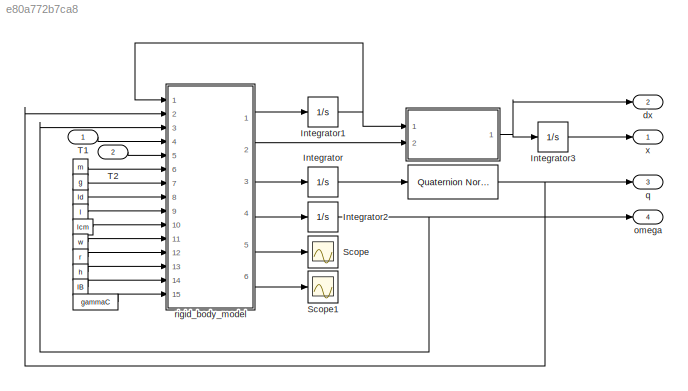
MODEL slx_e80a772b7ca8
KIND model
CONFIG AbsTol = auto
CONFIG FixedStep = auto
CONFIG MaxStep = auto
CONFIG MinStep = auto
CONFIG RelTol = 1e-3
CONFIG SampleTimeConstraint = Unconstrained
CONFIG Solver = VariableStepAuto
CONFIG SolverMode = Auto
CONFIG SolverName = VariableStepAuto
CONFIG StartTime = 0.0
CONFIG StopTime = 20
BLOCK [Constant]  
  Value = ld
BLOCK [Constant]   
  Value = m
BLOCK [Constant]    
  Value = g
BLOCK [Constant]     
  Value = l
BLOCK [Constant]      
  Value = lcm
BLOCK [Constant]       
  Value = w
BLOCK [Constant]        
  Value = r
BLOCK [Constant]         
  Value = h
BLOCK [Constant]          
  Value = IB
BLOCK [Constant]            
  Value = gammaC
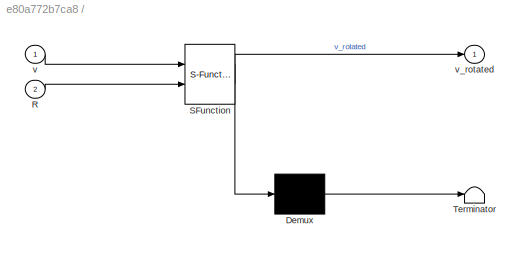
BLOCK [SubSystem]              
  ErrorFcn = Stateflow.Translate.translate
  PermitHierarchicalResolution = ExplicitOnly
  Ports = [2, 1]
  RequestExecContextInheritance = off
  SFBlockType = MATLAB Function
  TreatAsAtomicUnit = on
  Variant = off
BLOCK [Reference]                       REF=aerolibutil/Quaternion
Normalize
  Ports = [1, 1]
  SourceBlock = aerolibutil/Quaternion\nNormalize
  SourceType = Quaternion Normalize
BLOCK [Demux]              / Demux 
  Outputs = 1
  Ports = [1, 1]
BLOCK [S-Function]              / SFunction 
  EnableBusSupport = on
  FunctionName = sf_sfun
  PortCounts = [2 2]
  Ports = [2, 2]
  SFunctionDeploymentMode = off
  Tag = Stateflow S-Function rigid_body_model 1
BLOCK [Terminator]              / Terminator 
BLOCK [Inport]              /R
  IconDisplay = Port number
  Port = 2
BLOCK [Inport]              /v
  IconDisplay = Port number
BLOCK [Outport]              /v_rotated
  IconDisplay = Port number
BLOCK [Integrator] Integrator
  InitialCondition = q0
  Ports = [1, 1]
BLOCK [Integrator] Integrator1
  InitialCondition = v0
  Ports = [1, 1]
BLOCK [Integrator] Integrator2
  InitialCondition = omega0
  Ports = [1, 1]
BLOCK [Integrator] Integrator3
  InitialCondition = p0
  Ports = [1, 1]
BLOCK [Scope] Scope
  Ports = [1]
  ScopeSpecificationString = Simulink.scopes.TimeScopeBlockCfg('CurrentConfiguration', extmgr.ConfigurationSet(extmgr.Configuration('Core','General UI',true),extmgr.Configuration('Core','Source UI',true),extmgr.Configuration('Sources','WiredSimulink',true),extmgr.Configuration('Visuals','Time Domain',true,'SerializedDisplays',{struct('MinYLimReal','-0.04058','MaxYLimReal','0.33234','YLabelReal','','MinYLimMag','0.00000','MaxY...<+1401ch>
BLOCK [Scope] Scope1
  Ports = [1]
  ScopeSpecificationString = Simulink.scopes.TimeScopeBlockCfg('CurrentConfiguration', extmgr.ConfigurationSet(extmgr.Configuration('Core','General UI',true),extmgr.Configuration('Core','Source UI',true),extmgr.Configuration('Sources','WiredSimulink',true,'DataLoggingVariableName','ScopeData1'),extmgr.Configuration('Visuals','Time Domain',true,'SerializedDisplays',{struct('MinYLimReal','-1.25','MaxYLimReal','1.25','YLabelReal...<+1450ch>
BLOCK [Inport] T1
  IconDisplay = Port number
  PortDimensions = 3
BLOCK [Inport] T2
  IconDisplay = Port number
  Port = 2
  PortDimensions = 3
BLOCK [Outport] dx
  IconDisplay = Port number
  Port = 2
  PortDimensions = 3
BLOCK [Outport] omega
  IconDisplay = Port number
  Port = 4
  PortDimensions = 3
BLOCK [Outport] q
  IconDisplay = Port number
  Port = 3
  PortDimensions = 4
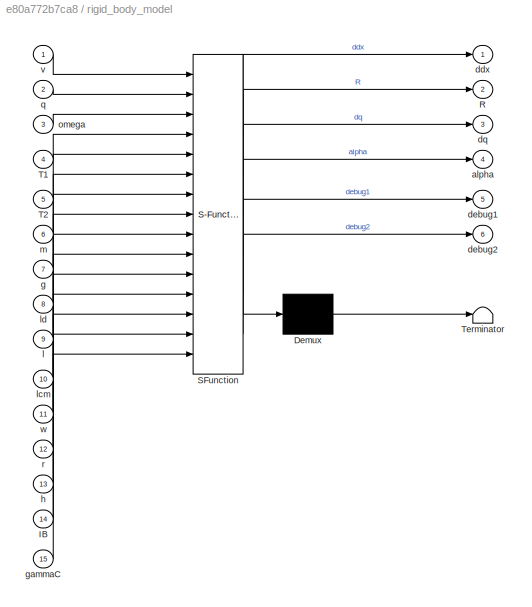
BLOCK [SubSystem] rigid_body_model
  ErrorFcn = Stateflow.Translate.translate
  PermitHierarchicalResolution = ExplicitOnly
  Ports = [15, 6]
  RequestExecContextInheritance = off
  SFBlockType = MATLAB Function
  TreatAsAtomicUnit = on
  Variant = off
BLOCK [Demux] rigid_body_model/ Demux 
  Outputs = 1
  Ports = [1, 1]
BLOCK [S-Function] rigid_body_model/ SFunction 
  EnableBusSupport = on
  FunctionName = sf_sfun
  PortCounts = [15 7]
  Ports = [15, 7]
  SFunctionDeploymentMode = off
  Tag = Stateflow S-Function rigid_body_model 2
BLOCK [Terminator] rigid_body_model/ Terminator 
BLOCK [Inport] rigid_body_model/IB
  IconDisplay = Port number
  Port = 14
BLOCK [Outport] rigid_body_model/R
  IconDisplay = Port number
  Port = 2
BLOCK [Inport] rigid_body_model/T1
  IconDisplay = Port number
  Port = 4
BLOCK [Inport] rigid_body_model/T2
  IconDisplay = Port number
  Port = 5
BLOCK [Outport] rigid_body_model/alpha
  IconDisplay = Port number
  Port = 4
BLOCK [Outport] rigid_body_model/ddx
  IconDisplay = Port number
BLOCK [Outport] rigid_body_model/debug1
  IconDisplay = Port number
  Port = 5
BLOCK [Outport] rigid_body_model/debug2
  IconDisplay = Port number
  Port = 6
BLOCK [Outport] rigid_body_model/dq
  IconDisplay = Port number
  Port = 3
BLOCK [Inport] rigid_body_model/g
  IconDisplay = Port number
  Port = 7
BLOCK [Inport] rigid_body_model/gammaC
  IconDisplay = Port number
  Port = 15
BLOCK [Inport] rigid_body_model/h
  IconDisplay = Port number
  Port = 13
BLOCK [Inport] rigid_body_model/l
  IconDisplay = Port number
  Port = 9
BLOCK [Inport] rigid_body_model/lcm
  IconDisplay = Port number
  Port = 10
BLOCK [Inport] rigid_body_model/ld
  IconDisplay = Port number
  Port = 8
BLOCK [Inport] rigid_body_model/m
  IconDisplay = Port number
  Port = 6
BLOCK [Inport] rigid_body_model/omega
  IconDisplay = Port number
  Port = 3
BLOCK [Inport] rigid_body_model/q
  IconDisplay = Port number
  Port = 2
BLOCK [Inport] rigid_body_model/r
  IconDisplay = Port number
  Port = 12
BLOCK [Inport] rigid_body_model/v
  IconDisplay = Port number
BLOCK [Inport] rigid_body_model/w
  IconDisplay = Port number
  Port = 11
BLOCK [Outport] x
  IconDisplay = Port number
  PortDimensions = 3
NET                     :1 -> q:1, rigid_body_model:2
NET              :1 -> Integrator3:1, dx:1
LINE            :1 -> rigid_body_model:15
LINE          :1 -> rigid_body_model:14
LINE         :1 -> rigid_body_model:13
LINE        :1 -> rigid_body_model:12
LINE       :1 -> rigid_body_model:11
LINE      :1 -> rigid_body_model:10
LINE     :1 -> rigid_body_model:9
LINE    :1 -> rigid_body_model:7
LINE   :1 -> rigid_body_model:6
LINE  :1 -> rigid_body_model:8
NET Integrator1:1 ->              :1, rigid_body_model:1
NET Integrator2:1 -> omega:1, rigid_body_model:3
LINE Integrator3:1 -> x:1
LINE Integrator:1 ->                     :1
LINE T1:1 -> rigid_body_model:4
LINE T2:1 -> rigid_body_model:5
LINE rigid_body_model:1 -> Integrator1:1
LINE rigid_body_model:2 ->              :2
LINE rigid_body_model:3 -> Integrator:1
LINE rigid_body_model:4 -> Integrator2:1
LINE rigid_body_model:5 -> Scope:1
LINE rigid_body_model:6 -> Scope1:1
note: NET lines group one-source signal fan-out (src -> all destinations, sorted); 1:1 wires keep LINE
CHART               states=1 transitions=1
  STATE_LABEL 'eML_blk_kernel()'
  STATE_LABEL 'SCRIPT:\nfunction v_rotated = rotateVelocity(v, R)\n%#codegen\nv_rotated = R*v;'
CHART rigid_body_model states=1 transitions=1
  STATE_LABEL 'eML_blk_kernel()'
  STATE_LABEL "SCRIPT:\nfunction [ddx, R, dq, alpha, debug1, debug2] = rigid_body(v, q, omega, T1, T2, m, g, ld, l, lcm, w, r, h, IB, gammaC)\n% Sets upp the system B = AX + C\n\n% System vectors\ndcm = [lcm, 0, 0]';\nd1 = [0, -w, 0]';\nd2 = [0,  w, 0]';\nd3 = [l,  w, 0]';\nd4 = [l, -w, 0]';\nqw = q(1);\nqx = q(2);\nqy = q(3);\nqz = q(4);\nqv = q(2:4);\n\n% Matrix operators\nI3     = eye(3);\nZ3     = zeros(3);\nScm    = get_skew_...<+1575ch>"
